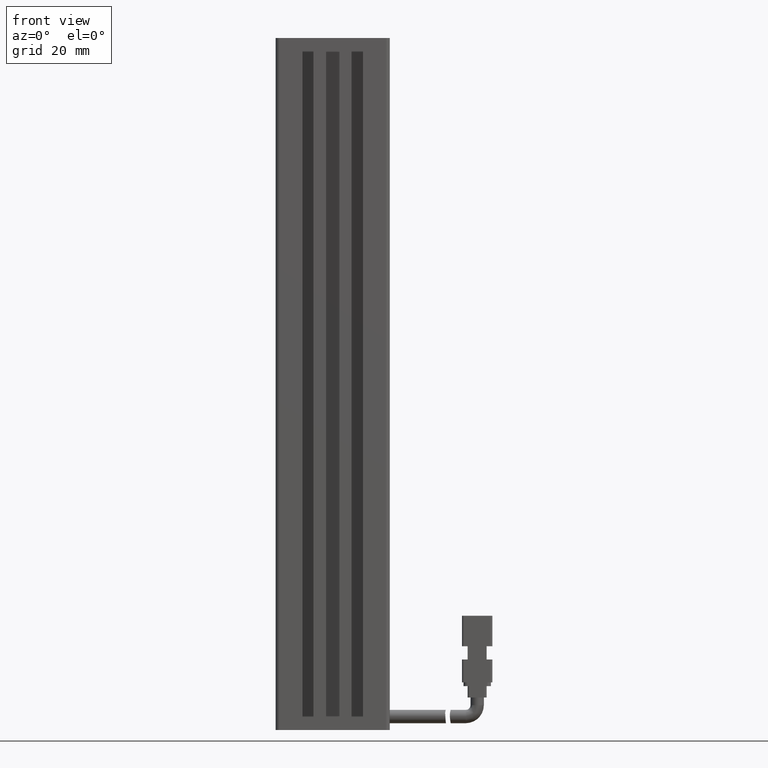
[diagram: clean part render]
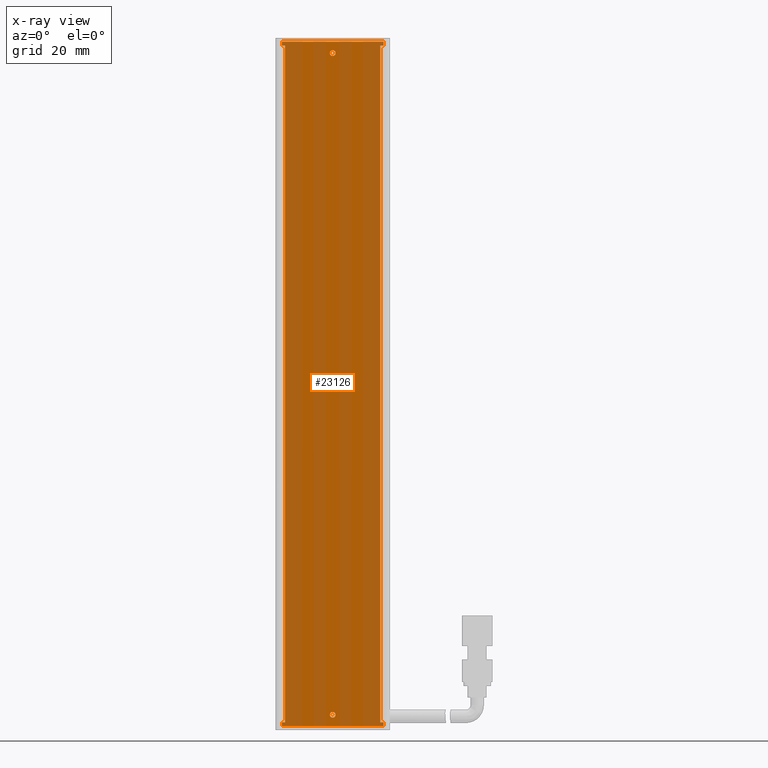
[diagram: x-ray — body ghosted, one internal face saturated and labeled with its STEP entity id]
A machine part, front view, then the same camera in x-ray: the body is ghosted and one INTERNAL B-rep face — a face not visible from any outside direction — is saturated and labeled: STEP entity #23126.
In plain terms, the highlighted planar face has unit normal (-0, 1, 0).
Its self-contained STEP definition (entity closure, byte-faithful):
#342 = LINE ( 'NONE', #40730, #17057 ) ;
#1237 = CARTESIAN_POINT ( 'NONE',  ( 27.52537974683539100, 32.19594479660386800, -26.00000000000001100 ) ) ;
#2545 = CARTESIAN_POINT ( 'NONE',  ( 40.92537974683538900, 32.19594479660386100, -201.2499999999999700 ) ) ;
#3244 = VERTEX_POINT ( 'NONE', #35688 ) ;
#3270 = CARTESIAN_POINT ( 'NONE',  ( 40.92537974683542500, 32.19594479660386800, -204.0000000000000300 ) ) ;
#3335 = EDGE_CURVE ( 'NONE', #14538, #24711, #24387, .T. ) ;
#3519 = ORIENTED_EDGE ( 'NONE', *, *, #17853, .F. ) ;
#3789 = ORIENTED_EDGE ( 'NONE', *, *, #20090, .F. ) ;
#3828 = VERTEX_POINT ( 'NONE', #15532 ) ;
#4243 = DIRECTION ( 'NONE',  ( 5.551115123125781500E-017, 0.0000000000000000000, 1.000000000000000000 ) ) ;
#4678 = CARTESIAN_POINT ( 'NONE',  ( 27.52537974683540200, 32.19594479660386100, -24.99999999999999300 ) ) ;
#4759 = LINE ( 'NONE', #15886, #39269 ) ;
#4817 = VERTEX_POINT ( 'NONE', #6858 ) ;
#4948 = CARTESIAN_POINT ( 'NONE',  ( 27.52537974683541600, 32.19594479660386100, -24.99999999999999300 ) ) ;
#5214 = EDGE_CURVE ( 'NONE', #3244, #25081, #19723, .T. ) ;
#5251 = VECTOR ( 'NONE', #23083, 1000.000000000000000 ) ;
#5447 = DIRECTION ( 'NONE',  ( 1.000000000000000000, 0.0000000000000000000, -5.551115123125781500E-017 ) ) ;
#5471 = EDGE_CURVE ( 'NONE', #25081, #3244, #15415, .T. ) ;
#6041 = DIRECTION ( 'NONE',  ( -0.0000000000000000000, -0.0000000000000000000, -1.000000000000000000 ) ) ;
#6124 = EDGE_CURVE ( 'NONE', #31966, #4817, #11606, .T. ) ;
#6220 = VERTEX_POINT ( 'NONE', #1237 ) ;
#6248 = CARTESIAN_POINT ( 'NONE',  ( 28.42537974683542100, 32.19594479660386800, -24.00000000000000700 ) ) ;
#6562 = DIRECTION ( 'NONE',  ( -1.000000000000000000, -0.0000000000000000000, 0.0000000000000000000 ) ) ;
#6664 = EDGE_CURVE ( 'NONE', #27127, #24026, #34005, .T. ) ;
#6858 = CARTESIAN_POINT ( 'NONE',  ( 28.42537974683542100, 32.19594479660386800, -204.0000000000000300 ) ) ;
#8649 = EDGE_LOOP ( 'NONE', ( #36735, #14456 ) ) ;
#9593 = DIRECTION ( 'NONE',  ( -5.551115123125781500E-017, -0.0000000000000000000, -1.000000000000000000 ) ) ;
#9614 = VECTOR ( 'NONE', #38237, 1000.000000000000000 ) ;
#9701 = DIRECTION ( 'NONE',  ( -1.000000000000000000, -0.0000000000000000000, 5.551115123125781500E-017 ) ) ;
#9889 = CARTESIAN_POINT ( 'NONE',  ( 54.32537974683541600, 32.19594479660386100, -24.99999999999999300 ) ) ;
#9941 = DIRECTION ( 'NONE',  ( -0.0000000000000000000, 1.000000000000000000, 0.0000000000000000000 ) ) ;
#10002 = LINE ( 'NONE', #9889, #36219 ) ;
#10084 = ORIENTED_EDGE ( 'NONE', *, *, #3335, .T. ) ;
#10685 = CARTESIAN_POINT ( 'NONE',  ( 54.32537974683541600, 32.19594479660386100, -26.00000000000001100 ) ) ;
#10974 = CARTESIAN_POINT ( 'NONE',  ( 40.92537974683542500, 32.19594479660386800, -26.00000000000001100 ) ) ;
#11606 = LINE ( 'NONE', #6248, #28355 ) ;
#11630 = EDGE_CURVE ( 'NONE', #22415, #15250, #10002, .T. ) ;
#11659 = ORIENTED_EDGE ( 'NONE', *, *, #30708, .T. ) ;
#11690 = CARTESIAN_POINT ( 'NONE',  ( 54.32537974683539500, 32.19594479660386100, -205.0000000000000000 ) ) ;
#12515 = VERTEX_POINT ( 'NONE', #43343 ) ;
#13722 = FACE_OUTER_BOUND ( 'NONE', #35946, .T. ) ;
#14077 = AXIS2_PLACEMENT_3D ( 'NONE', #34663, #14601, #38017 ) ;
#14456 = ORIENTED_EDGE ( 'NONE', *, *, #6664, .F. ) ;
#14538 = VERTEX_POINT ( 'NONE', #41126 ) ;
#14601 = DIRECTION ( 'NONE',  ( -0.0000000000000000000, -1.000000000000000000, -0.0000000000000000000 ) ) ;
#15151 = LINE ( 'NONE', #32986, #5251 ) ;
#15250 = VERTEX_POINT ( 'NONE', #11690 ) ;
#15415 = CIRCLE ( 'NONE', #30979, 0.7500000000000006700 ) ;
#15452 = VECTOR ( 'NONE', #27801, 1000.000000000000000 ) ;
#15532 = CARTESIAN_POINT ( 'NONE',  ( 54.32537974683541600, 32.19594479660386100, -24.99999999999999300 ) ) ;
#15688 = CARTESIAN_POINT ( 'NONE',  ( 54.32537974683541600, 32.19594479660386100, -204.0000000000000300 ) ) ;
#15886 = CARTESIAN_POINT ( 'NONE',  ( 53.42537974683542500, 32.19594479660386800, -24.00000000000000700 ) ) ;
#17057 = VECTOR ( 'NONE', #4243, 1000.000000000000000 ) ;
#17153 = EDGE_CURVE ( 'NONE', #6220, #21636, #26749, .T. ) ;
#17700 = ORIENTED_EDGE ( 'NONE', *, *, #11630, .F. ) ;
#17853 = EDGE_CURVE ( 'NONE', #21636, #3828, #19816, .T. ) ;
#18267 = LINE ( 'NONE', #3270, #34989 ) ;
#19272 = DIRECTION ( 'NONE',  ( -0.0000000000000000000, -0.0000000000000000000, -1.000000000000000000 ) ) ;
#19327 = EDGE_CURVE ( 'NONE', #24026, #27127, #23225, .T. ) ;
#19592 = LINE ( 'NONE', #41549, #9614 ) ;
#19723 = CIRCLE ( 'NONE', #41540, 0.7500000000000006700 ) ;
#19816 = LINE ( 'NONE', #22168, #42238 ) ;
#20090 = EDGE_CURVE ( 'NONE', #14538, #42271, #4759, .T. ) ;
#20172 = EDGE_CURVE ( 'NONE', #42271, #22415, #15151, .T. ) ;
#20406 = ORIENTED_EDGE ( 'NONE', *, *, #40731, .F. ) ;
#21043 = ORIENTED_EDGE ( 'NONE', *, *, #5471, .F. ) ;
#21267 = CARTESIAN_POINT ( 'NONE',  ( 28.42537974683542100, 32.19594479660386100, -26.00000000000001100 ) ) ;
#21636 = VERTEX_POINT ( 'NONE', #4948 ) ;
#22168 = CARTESIAN_POINT ( 'NONE',  ( 54.32537974683541600, 32.19594479660386100, -24.99999999999999300 ) ) ;
#22340 = ORIENTED_EDGE ( 'NONE', *, *, #6124, .T. ) ;
#22415 = VERTEX_POINT ( 'NONE', #15688 ) ;
#22799 = CARTESIAN_POINT ( 'NONE',  ( 53.42537974683542500, 32.19594479660386100, -204.0000000000000300 ) ) ;
#23083 = DIRECTION ( 'NONE',  ( 1.000000000000000000, 0.0000000000000000000, 0.0000000000000000000 ) ) ;
#23126 = ADVANCED_FACE ( 'NONE', ( #13722, #30494, #42486 ), #39876, .F. ) ;
#23225 = CIRCLE ( 'NONE', #14077, 0.7500000000000006700 ) ;
#23237 = CARTESIAN_POINT ( 'NONE',  ( 40.92537974683541800, 32.19594479660386100, -27.24999999999999600 ) ) ;
#23806 = LINE ( 'NONE', #10974, #41542 ) ;
#24026 = VERTEX_POINT ( 'NONE', #23237 ) ;
#24387 = LINE ( 'NONE', #28242, #15452 ) ;
#24692 = DIRECTION ( 'NONE',  ( 5.551115123125781500E-017, 0.0000000000000000000, 1.000000000000000000 ) ) ;
#24711 = VERTEX_POINT ( 'NONE', #10685 ) ;
#25081 = VERTEX_POINT ( 'NONE', #2545 ) ;
#25155 = LINE ( 'NONE', #43324, #34026 ) ;
#25561 = AXIS2_PLACEMENT_3D ( 'NONE', #42568, #42513, #42504 ) ;
#26335 = AXIS2_PLACEMENT_3D ( 'NONE', #29991, #9941, #33325 ) ;
#26650 = ORIENTED_EDGE ( 'NONE', *, *, #34166, .F. ) ;
#26749 = LINE ( 'NONE', #4678, #35615 ) ;
#27127 = VERTEX_POINT ( 'NONE', #31637 ) ;
#27801 = DIRECTION ( 'NONE',  ( 1.000000000000000000, -0.0000000000000000000, 0.0000000000000000000 ) ) ;
#28242 = CARTESIAN_POINT ( 'NONE',  ( 25.92537974683541800, 32.19594479660386100, -26.00000000000001100 ) ) ;
#28355 = VECTOR ( 'NONE', #6041, 1000.000000000000000 ) ;
#28362 = ORIENTED_EDGE ( 'NONE', *, *, #5214, .F. ) ;
#29991 = CARTESIAN_POINT ( 'NONE',  ( 54.32537974683541600, 32.19594479660386100, -24.99999999999999300 ) ) ;
#30494 = FACE_BOUND ( 'NONE', #8649, .T. ) ;
#30708 = EDGE_CURVE ( 'NONE', #4817, #12515, #18267, .T. ) ;
#30979 = AXIS2_PLACEMENT_3D ( 'NONE', #31978, #31836, #31754 ) ;
#31604 = ORIENTED_EDGE ( 'NONE', *, *, #36667, .F. ) ;
#31637 = CARTESIAN_POINT ( 'NONE',  ( 40.92537974683541800, 32.19594479660386100, -28.74999999999999600 ) ) ;
#31754 = DIRECTION ( 'NONE',  ( 0.0000000000000000000, 0.0000000000000000000, 1.000000000000000000 ) ) ;
#31836 = DIRECTION ( 'NONE',  ( -0.0000000000000000000, -1.000000000000000000, -0.0000000000000000000 ) ) ;
#31966 = VERTEX_POINT ( 'NONE', #21267 ) ;
#31978 = CARTESIAN_POINT ( 'NONE',  ( 40.92537974683538900, 32.19594479660386100, -201.9999999999999700 ) ) ;
#32267 = EDGE_LOOP ( 'NONE', ( #21043, #28362 ) ) ;
#32558 = VERTEX_POINT ( 'NONE', #41294 ) ;
#32810 = ORIENTED_EDGE ( 'NONE', *, *, #20172, .F. ) ;
#32986 = CARTESIAN_POINT ( 'NONE',  ( 40.92537974683542500, 32.19594479660386800, -204.0000000000000300 ) ) ;
#33325 = DIRECTION ( 'NONE',  ( 5.551115123125781500E-017, 0.0000000000000000000, 1.000000000000000000 ) ) ;
#34005 = CIRCLE ( 'NONE', #25561, 0.7500000000000006700 ) ;
#34026 = VECTOR ( 'NONE', #9701, 1000.000000000000000 ) ;
#34166 = EDGE_CURVE ( 'NONE', #32558, #12515, #342, .T. ) ;
#34397 = DIRECTION ( 'NONE',  ( 1.000000000000000000, 0.0000000000000000000, -0.0000000000000000000 ) ) ;
#34663 = CARTESIAN_POINT ( 'NONE',  ( 40.92537974683541800, 32.19594479660386100, -27.99999999999999600 ) ) ;
#34989 = VECTOR ( 'NONE', #6562, 1000.000000000000000 ) ;
#35615 = VECTOR ( 'NONE', #24692, 1000.000000000000000 ) ;
#35688 = CARTESIAN_POINT ( 'NONE',  ( 40.92537974683538900, 32.19594479660386100, -202.7500000000000000 ) ) ;
#35946 = EDGE_LOOP ( 'NONE', ( #32810, #3789, #10084, #20406, #3519, #38555, #42109, #22340, #11659, #26650, #31604, #17700 ) ) ;
#36219 = VECTOR ( 'NONE', #9593, 1000.000000000000000 ) ;
#36667 = EDGE_CURVE ( 'NONE', #15250, #32558, #25155, .T. ) ;
#36735 = ORIENTED_EDGE ( 'NONE', *, *, #19327, .F. ) ;
#38017 = DIRECTION ( 'NONE',  ( 0.0000000000000000000, 0.0000000000000000000, 1.000000000000000000 ) ) ;
#38237 = DIRECTION ( 'NONE',  ( -5.551115123125781500E-017, -0.0000000000000000000, -1.000000000000000000 ) ) ;
#38555 = ORIENTED_EDGE ( 'NONE', *, *, #17153, .F. ) ;
#39269 = VECTOR ( 'NONE', #19272, 1000.000000000000000 ) ;
#39876 = PLANE ( 'NONE',  #26335 ) ;
#40730 = CARTESIAN_POINT ( 'NONE',  ( 27.52537974683540200, 32.19594479660386100, -24.99999999999999300 ) ) ;
#40731 = EDGE_CURVE ( 'NONE', #3828, #24711, #19592, .T. ) ;
#41126 = CARTESIAN_POINT ( 'NONE',  ( 53.42537974683542500, 32.19594479660386800, -25.99999999999999600 ) ) ;
#41294 = CARTESIAN_POINT ( 'NONE',  ( 27.52537974683539100, 32.19594479660386100, -205.0000000000000000 ) ) ;
#41540 = AXIS2_PLACEMENT_3D ( 'NONE', #42259, #42206, #42108 ) ;
#41542 = VECTOR ( 'NONE', #34397, 1000.000000000000000 ) ;
#41549 = CARTESIAN_POINT ( 'NONE',  ( 54.32537974683541600, 32.19594479660386100, -24.99999999999999300 ) ) ;
#42108 = DIRECTION ( 'NONE',  ( 0.0000000000000000000, 0.0000000000000000000, 1.000000000000000000 ) ) ;
#42109 = ORIENTED_EDGE ( 'NONE', *, *, #43056, .T. ) ;
#42206 = DIRECTION ( 'NONE',  ( -0.0000000000000000000, -1.000000000000000000, -0.0000000000000000000 ) ) ;
#42238 = VECTOR ( 'NONE', #5447, 1000.000000000000000 ) ;
#42259 = CARTESIAN_POINT ( 'NONE',  ( 40.92537974683538900, 32.19594479660386100, -201.9999999999999700 ) ) ;
#42271 = VERTEX_POINT ( 'NONE', #22799 ) ;
#42486 = FACE_BOUND ( 'NONE', #32267, .T. ) ;
#42504 = DIRECTION ( 'NONE',  ( 0.0000000000000000000, 0.0000000000000000000, 1.000000000000000000 ) ) ;
#42513 = DIRECTION ( 'NONE',  ( -0.0000000000000000000, -1.000000000000000000, -0.0000000000000000000 ) ) ;
#42568 = CARTESIAN_POINT ( 'NONE',  ( 40.92537974683541800, 32.19594479660386100, -27.99999999999999600 ) ) ;
#43056 = EDGE_CURVE ( 'NONE', #6220, #31966, #23806, .T. ) ;
#43324 = CARTESIAN_POINT ( 'NONE',  ( 54.32537974683541600, 32.19594479660386100, -205.0000000000000000 ) ) ;
#43343 = CARTESIAN_POINT ( 'NONE',  ( 27.52537974683539100, 32.19594479660386800, -204.0000000000000300 ) ) ;